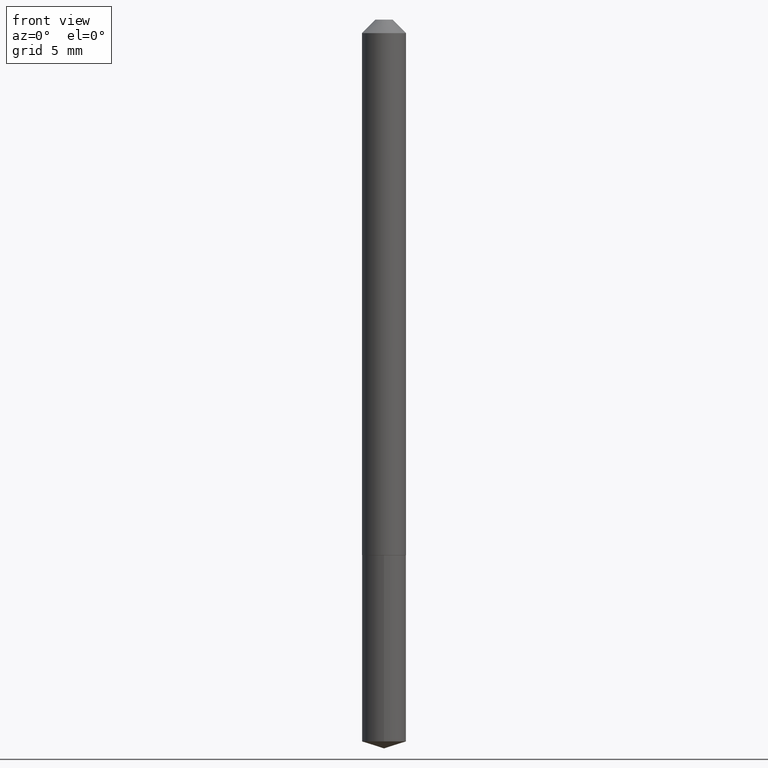
[diagram: clean part render]
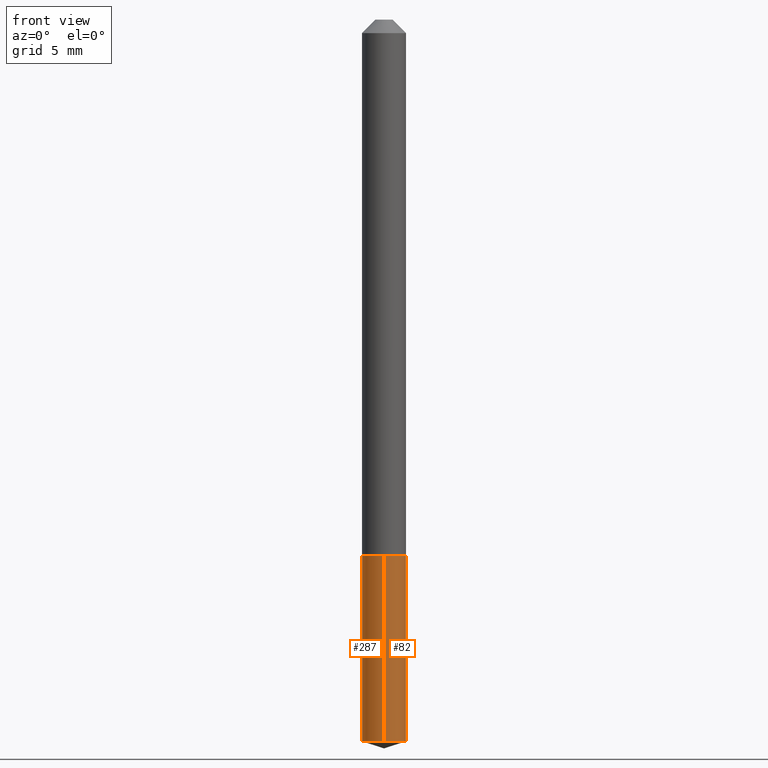
[diagram: same view with one multi-face feature highlighted, each face labeled with its STEP entity id]
A machine part, front view. The highlighted faces form ONE feature: a constant-radius fillet chain: 2 tangent blend faces with common blend radius 1.3005 mm. The faces share edges in the B-rep.
Their STEP definitions:
[1] entity #287 (Cylinder):
#5 = CIRCLE ( 'NONE', #311, 0.05120000000000000939 ) ;
#11 = ORIENTED_EDGE ( 'NONE', *, *, #35, .T. ) ;
#12 = EDGE_CURVE ( 'NONE', #62, #241, #5, .T. ) ;
#35 = EDGE_CURVE ( 'NONE', #241, #380, #222, .T. ) ;
#38 = AXIS2_PLACEMENT_3D ( 'NONE', #144, #109, #382 ) ;
#61 = CARTESIAN_POINT ( 'NONE',  ( -3.575276890974957291E-16, -0.05120000000000585194, -1.676756702009396083 ) ) ;
#62 = VERTEX_POINT ( 'NONE', #342 ) ;
#70 = CIRCLE ( 'NONE', #38, 0.05120000000000000939 ) ;
#78 = DIRECTION ( 'NONE',  ( -6.982962677686265133E-15, -1.000000000000000000, 5.335640612625512847E-15 ) ) ;
#99 = VECTOR ( 'NONE', #163, 39.37007874015748143 ) ;
#109 = DIRECTION ( 'NONE',  ( -2.445490304284170708E-29, 3.491450552341733069E-15, 1.000000000000000000 ) ) ;
#126 = CARTESIAN_POINT ( 'NONE',  ( 3.637978807092123827E-16, 0.05119999999999565871, -1.244100000000000206 ) ) ;
#131 = AXIS2_PLACEMENT_3D ( 'NONE', #187, #134, #78 ) ;
#134 = DIRECTION ( 'NONE',  ( -2.445490304284170708E-29, 3.491450552341733069E-15, 1.000000000000000000 ) ) ;
#137 = CARTESIAN_POINT ( 'NONE',  ( -3.575276890975064280E-16, -0.05120000000000435314, -1.244099999999999762 ) ) ;
#144 = CARTESIAN_POINT ( 'NONE',  ( 3.042407741774928155E-29, -4.343751933654757151E-15, -1.244099999999999984 ) ) ;
#163 = DIRECTION ( 'NONE',  ( -2.445490304284170708E-29, 3.491450552341733464E-15, 1.000000000000000000 ) ) ;
#187 = CARTESIAN_POINT ( 'NONE',  ( 3.042407741774928155E-29, -4.343751933654757151E-15, -1.244099999999999984 ) ) ;
#197 = CARTESIAN_POINT ( 'NONE',  ( 4.100465511622472783E-29, -5.854351414859816956E-15, -1.676756702009396527 ) ) ;
#222 = LINE ( 'NONE', #254, #274 ) ;
#228 = VERTEX_POINT ( 'NONE', #126 ) ;
#233 = EDGE_CURVE ( 'NONE', #62, #228, #242, .T. ) ;
#241 = VERTEX_POINT ( 'NONE', #61 ) ;
#242 = LINE ( 'NONE', #368, #99 ) ;
#246 = CYLINDRICAL_SURFACE ( 'NONE', #131, 0.05120000000000000939 ) ;
#254 = CARTESIAN_POINT ( 'NONE',  ( -3.575276890975064280E-16, -0.05120000000000435314, -1.244099999999999762 ) ) ;
#274 = VECTOR ( 'NONE', #316, 39.37007874015748143 ) ;
#278 = ORIENTED_EDGE ( 'NONE', *, *, #12, .T. ) ;
#285 = ORIENTED_EDGE ( 'NONE', *, *, #233, .F. ) ;
#287 = ADVANCED_FACE ( 'NONE', ( #308 ), #246, .T. ) ;
#300 = ORIENTED_EDGE ( 'NONE', *, *, #328, .F. ) ;
#308 = FACE_OUTER_BOUND ( 'NONE', #360, .T. ) ;
#311 = AXIS2_PLACEMENT_3D ( 'NONE', #197, #323, #344 ) ;
#316 = DIRECTION ( 'NONE',  ( -2.445490304284170708E-29, 3.491450552341733464E-15, 1.000000000000000000 ) ) ;
#323 = DIRECTION ( 'NONE',  ( -2.445490304284170708E-29, 3.491450552341733069E-15, 1.000000000000000000 ) ) ;
#328 = EDGE_CURVE ( 'NONE', #228, #380, #70, .T. ) ;
#342 = CARTESIAN_POINT ( 'NONE',  ( 3.637978807092122841E-16, 0.05119999999999413215, -1.676756702009396749 ) ) ;
#344 = DIRECTION ( 'NONE',  ( -6.982962677686265133E-15, -1.000000000000000000, 5.335640612625512847E-15 ) ) ;
#360 = EDGE_LOOP ( 'NONE', ( #285, #278, #11, #300 ) ) ;
#368 = CARTESIAN_POINT ( 'NONE',  ( 3.637978807092017330E-16, 0.05119999999999565871, -1.244100000000000206 ) ) ;
#380 = VERTEX_POINT ( 'NONE', #137 ) ;
#382 = DIRECTION ( 'NONE',  ( -6.982962677686265133E-15, -1.000000000000000000, 5.335640612625512847E-15 ) ) ;
[2] entity #82 (Cylinder):
#21 = DIRECTION ( 'NONE',  ( -6.982962677686265133E-15, -1.000000000000000000, 5.335640612625512847E-15 ) ) ;
#35 = EDGE_CURVE ( 'NONE', #241, #380, #222, .T. ) ;
#49 = CARTESIAN_POINT ( 'NONE',  ( 3.042407741774928155E-29, -4.343751933654757151E-15, -1.244099999999999984 ) ) ;
#61 = CARTESIAN_POINT ( 'NONE',  ( -3.575276890974957291E-16, -0.05120000000000585194, -1.676756702009396083 ) ) ;
#62 = VERTEX_POINT ( 'NONE', #342 ) ;
#69 = AXIS2_PLACEMENT_3D ( 'NONE', #210, #291, #21 ) ;
#79 = ORIENTED_EDGE ( 'NONE', *, *, #320, .T. ) ;
#82 = ADVANCED_FACE ( 'NONE', ( #177 ), #232, .T. ) ;
#92 = CIRCLE ( 'NONE', #171, 0.05120000000000000939 ) ;
#99 = VECTOR ( 'NONE', #163, 39.37007874015748143 ) ;
#105 = EDGE_CURVE ( 'NONE', #380, #228, #333, .T. ) ;
#108 = DIRECTION ( 'NONE',  ( -6.982962677686265133E-15, -1.000000000000000000, 5.335640612625512847E-15 ) ) ;
#126 = CARTESIAN_POINT ( 'NONE',  ( 3.637978807092123827E-16, 0.05119999999999565871, -1.244100000000000206 ) ) ;
#137 = CARTESIAN_POINT ( 'NONE',  ( -3.575276890975064280E-16, -0.05120000000000435314, -1.244099999999999762 ) ) ;
#150 = DIRECTION ( 'NONE',  ( -6.982962677686265133E-15, -1.000000000000000000, 5.335640612625512847E-15 ) ) ;
#163 = DIRECTION ( 'NONE',  ( -2.445490304284170708E-29, 3.491450552341733464E-15, 1.000000000000000000 ) ) ;
#171 = AXIS2_PLACEMENT_3D ( 'NONE', #283, #185, #150 ) ;
#177 = FACE_OUTER_BOUND ( 'NONE', #361, .T. ) ;
#185 = DIRECTION ( 'NONE',  ( -2.445490304284170708E-29, 3.491450552341733069E-15, 1.000000000000000000 ) ) ;
#210 = CARTESIAN_POINT ( 'NONE',  ( 3.042407741774928155E-29, -4.343751933654757151E-15, -1.244099999999999984 ) ) ;
#222 = LINE ( 'NONE', #254, #274 ) ;
#228 = VERTEX_POINT ( 'NONE', #126 ) ;
#232 = CYLINDRICAL_SURFACE ( 'NONE', #349, 0.05120000000000000939 ) ;
#233 = EDGE_CURVE ( 'NONE', #62, #228, #242, .T. ) ;
#237 = ORIENTED_EDGE ( 'NONE', *, *, #35, .F. ) ;
#241 = VERTEX_POINT ( 'NONE', #61 ) ;
#242 = LINE ( 'NONE', #368, #99 ) ;
#254 = CARTESIAN_POINT ( 'NONE',  ( -3.575276890975064280E-16, -0.05120000000000435314, -1.244099999999999762 ) ) ;
#274 = VECTOR ( 'NONE', #316, 39.37007874015748143 ) ;
#283 = CARTESIAN_POINT ( 'NONE',  ( 4.100465511622472783E-29, -5.854351414859816956E-15, -1.676756702009396527 ) ) ;
#288 = DIRECTION ( 'NONE',  ( -2.445490304284170708E-29, 3.491450552341733069E-15, 1.000000000000000000 ) ) ;
#291 = DIRECTION ( 'NONE',  ( -2.445490304284170708E-29, 3.491450552341733069E-15, 1.000000000000000000 ) ) ;
#314 = ORIENTED_EDGE ( 'NONE', *, *, #233, .T. ) ;
#316 = DIRECTION ( 'NONE',  ( -2.445490304284170708E-29, 3.491450552341733464E-15, 1.000000000000000000 ) ) ;
#320 = EDGE_CURVE ( 'NONE', #241, #62, #92, .T. ) ;
#333 = CIRCLE ( 'NONE', #69, 0.05120000000000000939 ) ;
#342 = CARTESIAN_POINT ( 'NONE',  ( 3.637978807092122841E-16, 0.05119999999999413215, -1.676756702009396749 ) ) ;
#345 = ORIENTED_EDGE ( 'NONE', *, *, #105, .F. ) ;
#349 = AXIS2_PLACEMENT_3D ( 'NONE', #49, #288, #108 ) ;
#361 = EDGE_LOOP ( 'NONE', ( #79, #314, #345, #237 ) ) ;
#368 = CARTESIAN_POINT ( 'NONE',  ( 3.637978807092017330E-16, 0.05119999999999565871, -1.244100000000000206 ) ) ;
#380 = VERTEX_POINT ( 'NONE', #137 ) ;